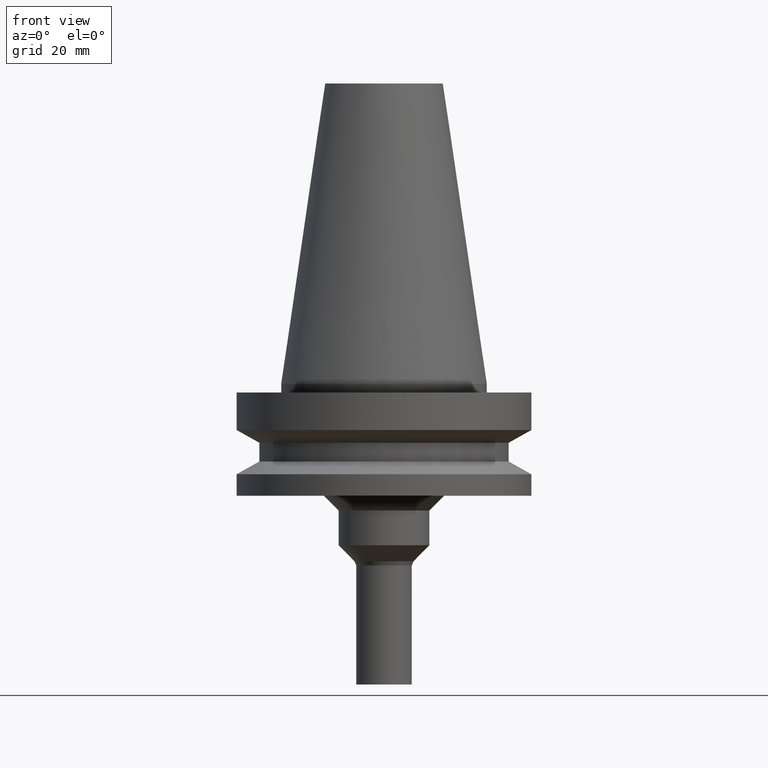
[diagram: clean part render]
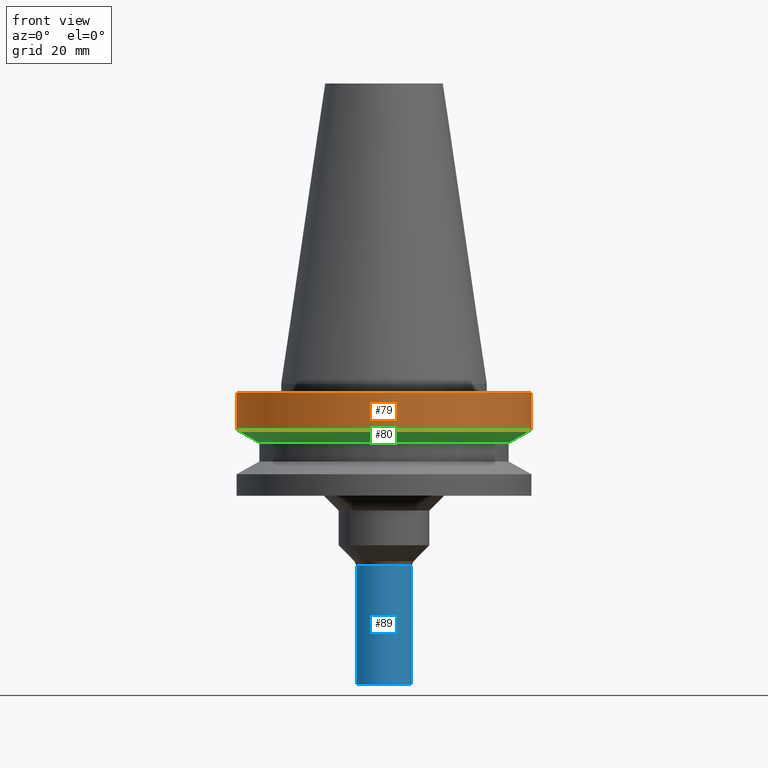
[diagram: same view with three faces highlighted in distinct colors, each labeled with its STEP entity id]
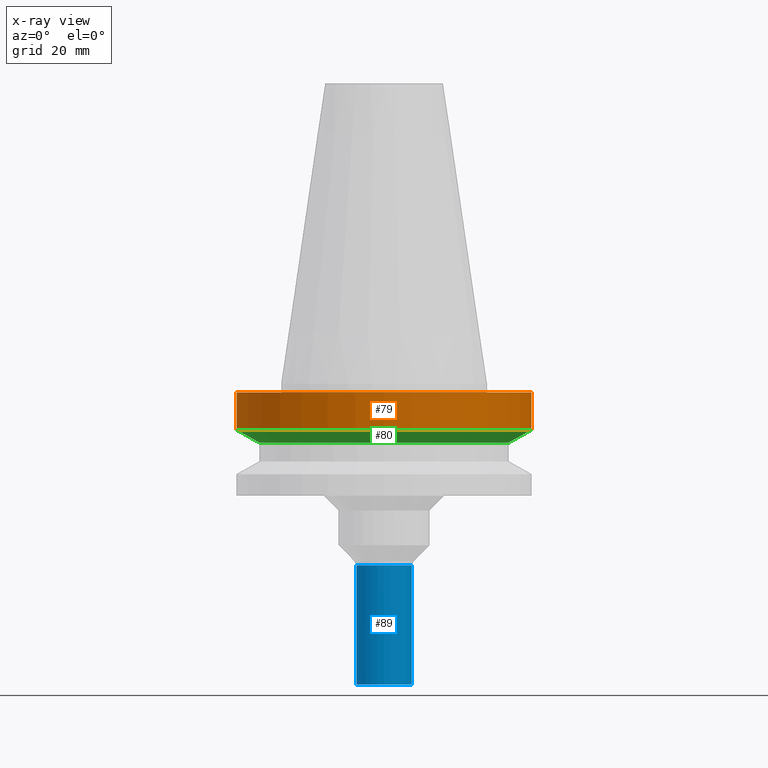
[diagram: x-ray of the same camera — body ghosted, the three highlighted faces saturated]
A machine part, front view with three faces highlighted in distinct colors.
The next image is the same camera in x-ray (body ghosted, the three faces saturated) — at least one of them is partly hidden behind the body in this view.
Their STEP definitions:

[orange] entity #79 — the highlighted cylindrical surface (bore or boss wall) has radius 50 mm, axis along (-0, -0, 1).
#79=ADVANCED_FACE('',(#103,#104),#105,.T.);
#103=FACE_BOUND('',#149,.T.);
#104=FACE_BOUND('',#150,.T.);
#105=CYLINDRICAL_SURFACE('',#151,50.0);
#149=EDGE_LOOP('',(#203));
#150=EDGE_LOOP('',(#204));
#151=AXIS2_PLACEMENT_3D('',#205,#206,#207);
#203=ORIENTED_EDGE('',*,*,#266,.F.);
#204=ORIENTED_EDGE('',*,*,#265,.T.);
#205=CARTESIAN_POINT('',(5.72522378601387E-016,1.14504475720277E-015,-9.34999999999999));
#206=DIRECTION('',(-6.12323399573677E-017,-1.22464679914672E-016,1.0));
#207=DIRECTION('',(-1.23259516440783E-032,1.0,1.22464679914672E-016));
#265=EDGE_CURVE('',#283,#283,#284,.T.);
#266=EDGE_CURVE('',#285,#285,#286,.T.);
#283=VERTEX_POINT('',#313);
#284=CIRCLE('',#314,50.0);
#285=VERTEX_POINT('',#315);
#286=CIRCLE('',#316,50.0);
#313=CARTESIAN_POINT('',(1.83697019872102E-016,50.0,-2.99999999999999));
#314=AXIS2_PLACEMENT_3D('',#346,#347,#348);
#315=CARTESIAN_POINT('',(9.61347737330672E-016,50.0,-15.7));
#316=AXIS2_PLACEMENT_3D('',#349,#350,#351);
#346=CARTESIAN_POINT('',(1.83697019872103E-016,3.67394039744206E-016,-3.0));
#347=DIRECTION('',(6.12323399573677E-017,1.22464679914672E-016,-1.0));
#348=DIRECTION('',(-1.23259516440783E-032,1.0,1.22464679914672E-016));
#349=CARTESIAN_POINT('',(9.61347737330673E-016,1.92269547466134E-015,-15.7));
#350=DIRECTION('',(6.12323399573677E-017,1.22464679914672E-016,-1.0));
#351=DIRECTION('',(-1.23259516440783E-032,1.0,1.22464679914672E-016));

[blue] entity #89 — the highlighted cylindrical surface (bore or boss wall) has radius 9.5 mm, axis along (-0, -0, 1).
#89=ADVANCED_FACE('',(#133,#134),#135,.T.);
#133=FACE_BOUND('',#179,.T.);
#134=FACE_BOUND('',#180,.T.);
#135=CYLINDRICAL_SURFACE('',#181,9.5);
#179=EDGE_LOOP('',(#253));
#180=EDGE_LOOP('',(#254));
#181=AXIS2_PLACEMENT_3D('',#255,#256,#257);
#253=ORIENTED_EDGE('',*,*,#276,.F.);
#254=ORIENTED_EDGE('',*,*,#275,.T.);
#255=CARTESIAN_POINT('',(5.0096757380506E-015,1.00193514761012E-014,-81.81421356));
#256=DIRECTION('',(-6.12323399573677E-017,-1.22464679914665E-016,1.0));
#257=DIRECTION('',(-1.23259516440783E-032,1.0,1.22464679914665E-016));
#275=EDGE_CURVE('',#303,#303,#304,.T.);
#276=EDGE_CURVE('',#305,#305,#306,.T.);
#303=VERTEX_POINT('',#333);
#304=CIRCLE('',#334,9.5);
#305=VERTEX_POINT('',#335);
#306=CIRCLE('',#336,9.5);
#333=CARTESIAN_POINT('',(3.7736528004497E-015,9.50000000000001,-61.62842712));
#334=AXIS2_PLACEMENT_3D('',#376,#377,#378);
#335=CARTESIAN_POINT('',(6.2456986756515E-015,9.50000000000001,-102.0));
#336=AXIS2_PLACEMENT_3D('',#379,#380,#381);
#376=CARTESIAN_POINT('',(3.7736528004497E-015,7.54730560089939E-015,-61.62842712));
#377=DIRECTION('',(6.12323399573677E-017,1.22464679914665E-016,-1.0));
#378=DIRECTION('',(-1.23259516440783E-032,1.0,1.22464679914665E-016));
#379=CARTESIAN_POINT('',(6.2456986756515E-015,1.2491397351303E-014,-102.0));
#380=DIRECTION('',(6.12323399573677E-017,1.22464679914665E-016,-1.0));
#381=DIRECTION('',(-1.23259516440783E-032,1.0,1.22464679914665E-016));

[green] entity #80 — the highlighted conical surface has half-angle 60 deg.
#80=ADVANCED_FACE('',(#106,#107),#108,.T.);
#106=FACE_BOUND('',#152,.T.);
#107=FACE_BOUND('',#153,.T.);
#108=CONICAL_SURFACE('',#154,46.25,1.04719755108882);
#152=EDGE_LOOP('',(#208));
#153=EDGE_LOOP('',(#209));
#154=AXIS2_PLACEMENT_3D('',#210,#211,#212);
#208=ORIENTED_EDGE('',*,*,#267,.F.);
#209=ORIENTED_EDGE('',*,*,#266,.T.);
#210=CARTESIAN_POINT('',(1.09391964220428E-015,2.18783928440857E-015,-17.86506351));
#211=DIRECTION('',(-6.12323399573676E-017,-1.22464679914679E-016,1.0));
#212=DIRECTION('',(-1.23259516440783E-032,1.0,1.22464679914679E-016));
#266=EDGE_CURVE('',#285,#285,#286,.T.);
#267=EDGE_CURVE('',#287,#287,#288,.T.);
#285=VERTEX_POINT('',#315);
#286=CIRCLE('',#316,50.0);
#287=VERTEX_POINT('',#317);
#288=CIRCLE('',#318,42.5);
#315=CARTESIAN_POINT('',(9.61347737330672E-016,50.0,-15.7));
#316=AXIS2_PLACEMENT_3D('',#349,#350,#351);
#317=CARTESIAN_POINT('',(1.2264915470779E-015,42.5,-20.03012702));
#318=AXIS2_PLACEMENT_3D('',#352,#353,#354);
#349=CARTESIAN_POINT('',(9.61347737330673E-016,1.92269547466134E-015,-15.7));
#350=DIRECTION('',(6.12323399573677E-017,1.22464679914672E-016,-1.0));
#351=DIRECTION('',(-1.23259516440783E-032,1.0,1.22464679914672E-016));
#352=CARTESIAN_POINT('',(1.2264915470779E-015,2.45298309415579E-015,-20.03012702));
#353=DIRECTION('',(6.12323399573677E-017,1.22464679914687E-016,-1.0));
#354=DIRECTION('',(-1.23259516440783E-032,1.0,1.22464679914687E-016));